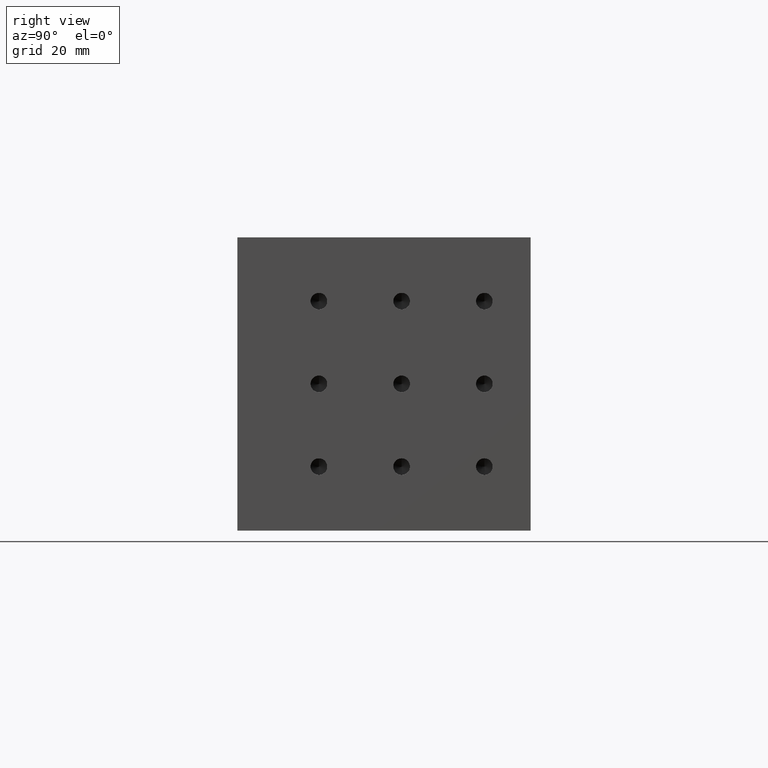
[diagram: clean part render]
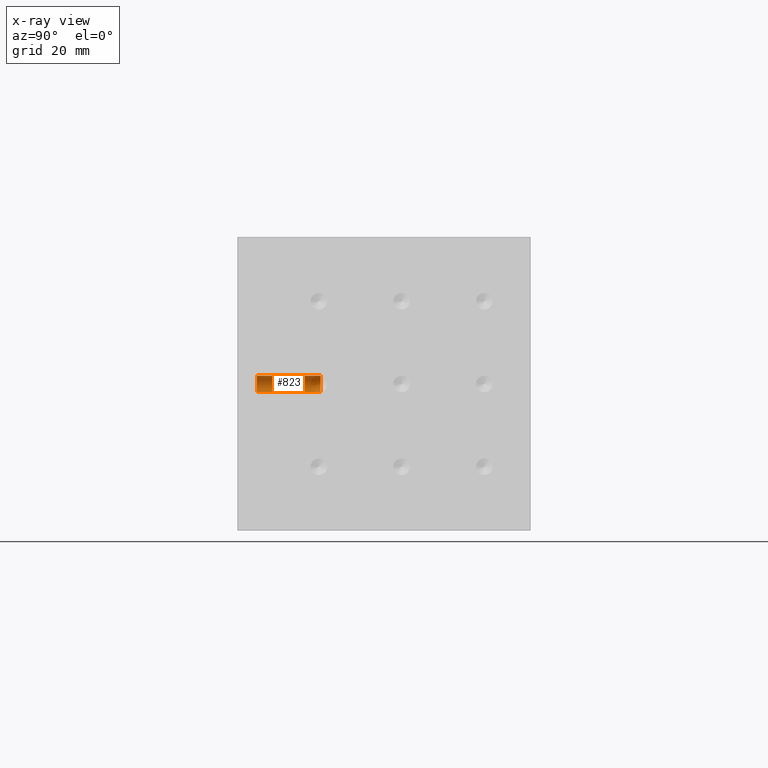
[diagram: x-ray — body ghosted, one internal face saturated and labeled with its STEP entity id]
A machine part, right view, then the same camera in x-ray: the body is ghosted and one INTERNAL B-rep face — a face not visible from any outside direction — is saturated and labeled: STEP entity #823.
In plain terms, the highlighted cylindrical surface (edge-blend (fillet) strip) has radius 2.5 mm, axis along (0, 1, 0).
Its self-contained STEP definition (entity closure, byte-faithful):
#107 = CARTESIAN_POINT ( 'NONE',  ( 119.8969387244427500, 129.9059063874781500, 146.3158939252802800 ) ) ;
#120 = DIRECTION ( 'NONE',  ( 0.0000000000000000000, 0.0000000000000000000, 1.000000000000000000 ) ) ;
#208 = ORIENTED_EDGE ( 'NONE', *, *, #3001, .T. ) ;
#317 = LINE ( 'NONE', #2375, #3851 ) ;
#727 = AXIS2_PLACEMENT_3D ( 'NONE', #2479, #3331, #2493 ) ;
#755 = EDGE_CURVE ( 'NONE', #3546, #5000, #4119, .T. ) ;
#784 = VERTEX_POINT ( 'NONE', #2523 ) ;
#823 = ADVANCED_FACE ( 'NONE', ( #4507 ), #1440, .T. ) ;
#1277 = CARTESIAN_POINT ( 'NONE',  ( 119.8969387244427500, 110.7146020396520500, 146.3158939252802800 ) ) ;
#1440 = CYLINDRICAL_SURFACE ( 'NONE', #727, 2.500000000000002200 ) ;
#1472 = CARTESIAN_POINT ( 'NONE',  ( 119.8969387244427500, 110.7146020396520500, 141.3158939252802800 ) ) ;
#1522 = EDGE_CURVE ( 'NONE', #3734, #784, #3586, .T. ) ;
#1541 = EDGE_CURVE ( 'NONE', #3734, #5000, #317, .T. ) ;
#1754 = CARTESIAN_POINT ( 'NONE',  ( 119.8969387244427500, 91.21460203965206400, 141.3158939252802800 ) ) ;
#1953 = ORIENTED_EDGE ( 'NONE', *, *, #1522, .T. ) ;
#2033 = LINE ( 'NONE', #107, #3612 ) ;
#2375 = CARTESIAN_POINT ( 'NONE',  ( 119.8969387244427500, 129.9059063874781500, 141.3158939252802800 ) ) ;
#2479 = CARTESIAN_POINT ( 'NONE',  ( 119.8969387244427500, 129.9059063874781500, 143.8158939252802800 ) ) ;
#2493 = DIRECTION ( 'NONE',  ( 0.0000000000000000000, 0.0000000000000000000, 1.000000000000000000 ) ) ;
#2523 = CARTESIAN_POINT ( 'NONE',  ( 119.8969387244427500, 91.21460203965206400, 146.3158939252802800 ) ) ;
#2940 = ORIENTED_EDGE ( 'NONE', *, *, #755, .T. ) ;
#3001 = EDGE_CURVE ( 'NONE', #784, #3546, #2033, .T. ) ;
#3022 = DIRECTION ( 'NONE',  ( 0.0000000000000000000, 1.000000000000000000, 0.0000000000000000000 ) ) ;
#3211 = AXIS2_PLACEMENT_3D ( 'NONE', #4195, #4216, #4634 ) ;
#3331 = DIRECTION ( 'NONE',  ( 0.0000000000000000000, 1.000000000000000000, 0.0000000000000000000 ) ) ;
#3410 = EDGE_LOOP ( 'NONE', ( #4659, #1953, #208, #2940 ) ) ;
#3546 = VERTEX_POINT ( 'NONE', #1277 ) ;
#3586 = CIRCLE ( 'NONE', #3811, 2.500000000000002200 ) ;
#3612 = VECTOR ( 'NONE', #4228, 1000.000000000000000 ) ;
#3734 = VERTEX_POINT ( 'NONE', #1754 ) ;
#3811 = AXIS2_PLACEMENT_3D ( 'NONE', #3884, #3022, #120 ) ;
#3851 = VECTOR ( 'NONE', #4901, 1000.000000000000000 ) ;
#3884 = CARTESIAN_POINT ( 'NONE',  ( 119.8969387244427500, 91.21460203965206400, 143.8158939252802800 ) ) ;
#4119 = CIRCLE ( 'NONE', #3211, 2.500000000000002200 ) ;
#4195 = CARTESIAN_POINT ( 'NONE',  ( 119.8969387244427500, 110.7146020396520500, 143.8158939252802800 ) ) ;
#4216 = DIRECTION ( 'NONE',  ( 0.0000000000000000000, -1.000000000000000000, 0.0000000000000000000 ) ) ;
#4228 = DIRECTION ( 'NONE',  ( 0.0000000000000000000, 1.000000000000000000, 0.0000000000000000000 ) ) ;
#4507 = FACE_OUTER_BOUND ( 'NONE', #3410, .T. ) ;
#4634 = DIRECTION ( 'NONE',  ( 0.0000000000000000000, 0.0000000000000000000, -1.000000000000000000 ) ) ;
#4659 = ORIENTED_EDGE ( 'NONE', *, *, #1541, .F. ) ;
#4901 = DIRECTION ( 'NONE',  ( 0.0000000000000000000, 1.000000000000000000, 0.0000000000000000000 ) ) ;
#5000 = VERTEX_POINT ( 'NONE', #1472 ) ;